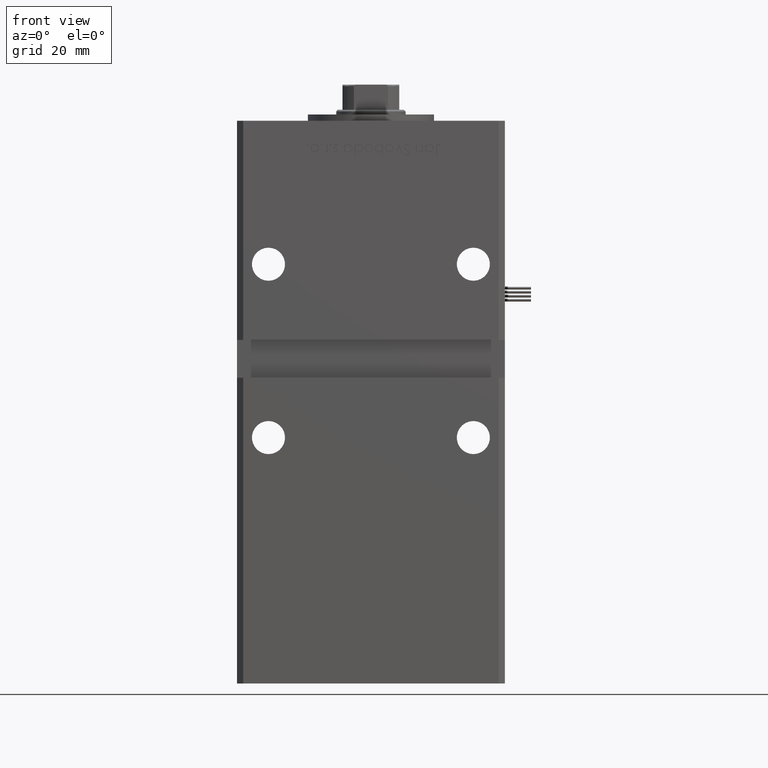
[diagram: clean part render]
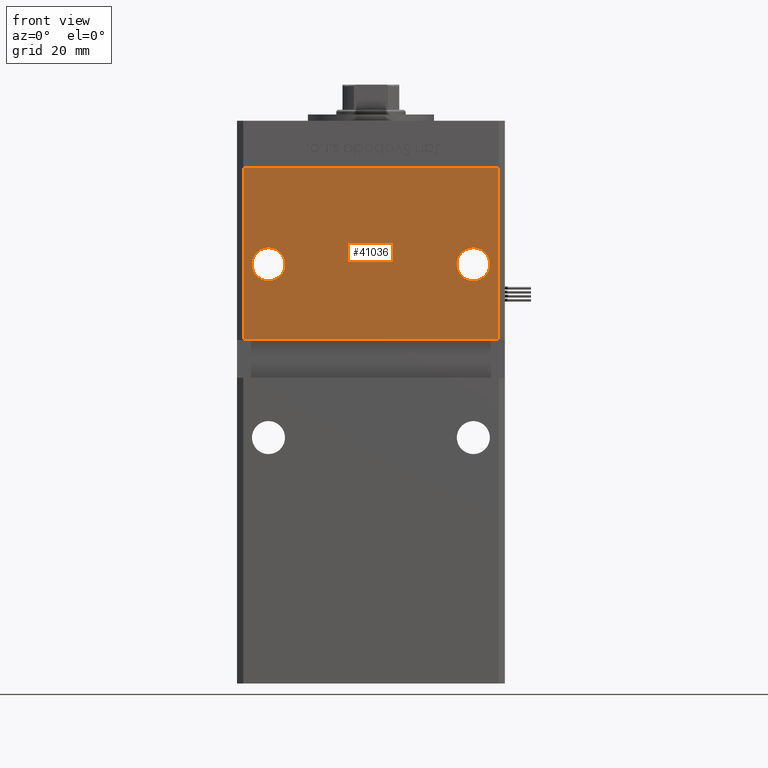
[diagram: same view with one face highlighted and labeled with its STEP entity id]
A machine part, front view. The second image highlights one B-rep face of the part: STEP entity #41036.
In plain terms, the highlighted planar face has unit normal (0, 1, 0).
Its self-contained STEP definition (entity closure, byte-faithful):
#2134 = CARTESIAN_POINT ( 'NONE',  ( -40.49999999999998579, -37.50000000000000711, 94.00000000000000000 ) ) ;
#2367 = DIRECTION ( 'NONE',  ( 0.000000000000000000, 1.000000000000000000, 0.000000000000000000 ) ) ;
#2381 = AXIS2_PLACEMENT_3D ( 'NONE', #37273, #23958, #15458 ) ;
#3640 = EDGE_CURVE ( 'NONE', #21889, #29793, #51138, .T. ) ;
#5146 = LINE ( 'NONE', #30668, #56143 ) ;
#7129 = ORIENTED_EDGE ( 'NONE', *, *, #28558, .T. ) ;
#7492 = CIRCLE ( 'NONE', #34646, 5.250000000000004441 ) ;
#7751 = PLANE ( 'NONE',  #2381 ) ;
#9617 = CARTESIAN_POINT ( 'NONE',  ( -32.50000000000000000, -37.50000000000000711, 112.7499999999999858 ) ) ;
#9652 = DIRECTION ( 'NONE',  ( -0.000000000000000000, -0.000000000000000000, -1.000000000000000000 ) ) ;
#10972 = CARTESIAN_POINT ( 'NONE',  ( -32.50000000000000000, -37.50000000000000711, 123.2500000000000000 ) ) ;
#11550 = DIRECTION ( 'NONE',  ( 0.000000000000000000, 1.000000000000000000, 0.000000000000000000 ) ) ;
#12023 = FACE_BOUND ( 'NONE', #38915, .T. ) ;
#13961 = DIRECTION ( 'NONE',  ( 0.000000000000000000, 1.000000000000000000, 0.000000000000000000 ) ) ;
#15163 = CARTESIAN_POINT ( 'NONE',  ( 32.50000000000000000, -37.50000000000000711, 118.0000000000000000 ) ) ;
#15458 = DIRECTION ( 'NONE',  ( 0.000000000000000000, -0.000000000000000000, 1.000000000000000000 ) ) ;
#15549 = AXIS2_PLACEMENT_3D ( 'NONE', #39467, #13961, #26434 ) ;
#17112 = VERTEX_POINT ( 'NONE', #20369 ) ;
#17240 = ORIENTED_EDGE ( 'NONE', *, *, #24877, .T. ) ;
#20225 = EDGE_CURVE ( 'NONE', #17112, #42887, #32454, .T. ) ;
#20352 = EDGE_CURVE ( 'NONE', #21889, #42887, #5146, .T. ) ;
#20369 = CARTESIAN_POINT ( 'NONE',  ( 40.49999999999997868, -37.50000000000000711, 94.00000000000000000 ) ) ;
#21011 = ORIENTED_EDGE ( 'NONE', *, *, #20225, .F. ) ;
#21482 = CARTESIAN_POINT ( 'NONE',  ( 40.49999999999998579, -37.50000000000000711, 148.5000000000000000 ) ) ;
#21889 = VERTEX_POINT ( 'NONE', #22815 ) ;
#22815 = CARTESIAN_POINT ( 'NONE',  ( -40.49999999999998579, -37.50000000000000711, 148.5000000000000000 ) ) ;
#22920 = DIRECTION ( 'NONE',  ( 0.000000000000000000, 1.000000000000000000, 0.000000000000000000 ) ) ;
#23958 = DIRECTION ( 'NONE',  ( 0.000000000000000000, 1.000000000000000000, 0.000000000000000000 ) ) ;
#24877 = EDGE_CURVE ( 'NONE', #36422, #27571, #49046, .T. ) ;
#25762 = VERTEX_POINT ( 'NONE', #26444 ) ;
#26434 = DIRECTION ( 'NONE',  ( 0.000000000000000000, 0.000000000000000000, 1.000000000000000000 ) ) ;
#26444 = CARTESIAN_POINT ( 'NONE',  ( 32.50000000000000000, -37.50000000000000711, 123.2500000000000000 ) ) ;
#27160 = ORIENTED_EDGE ( 'NONE', *, *, #49079, .T. ) ;
#27233 = ORIENTED_EDGE ( 'NONE', *, *, #3640, .F. ) ;
#27571 = VERTEX_POINT ( 'NONE', #10972 ) ;
#28067 = EDGE_CURVE ( 'NONE', #29793, #17112, #48507, .T. ) ;
#28262 = VERTEX_POINT ( 'NONE', #46770 ) ;
#28558 = EDGE_CURVE ( 'NONE', #27571, #36422, #7492, .T. ) ;
#29024 = DIRECTION ( 'NONE',  ( 0.000000000000000000, 0.000000000000000000, 1.000000000000000000 ) ) ;
#29105 = ORIENTED_EDGE ( 'NONE', *, *, #20352, .T. ) ;
#29236 = VECTOR ( 'NONE', #9652, 1000.000000000000000 ) ;
#29793 = VERTEX_POINT ( 'NONE', #21482 ) ;
#30668 = CARTESIAN_POINT ( 'NONE',  ( -40.49999999999998579, -37.50000000000000711, 148.5000000000000000 ) ) ;
#31420 = CARTESIAN_POINT ( 'NONE',  ( 32.50000000000000000, -37.50000000000000711, 118.0000000000000000 ) ) ;
#32454 = LINE ( 'NONE', #48933, #37986 ) ;
#34646 = AXIS2_PLACEMENT_3D ( 'NONE', #41608, #11550, #41043 ) ;
#36236 = DIRECTION ( 'NONE',  ( 0.000000000000000000, 0.000000000000000000, 1.000000000000000000 ) ) ;
#36422 = VERTEX_POINT ( 'NONE', #9617 ) ;
#37273 = CARTESIAN_POINT ( 'NONE',  ( -40.49999999999998579, -37.50000000000000711, 148.5000000000000000 ) ) ;
#37986 = VECTOR ( 'NONE', #49781, 1000.000000000000000 ) ;
#38915 = EDGE_LOOP ( 'NONE', ( #27160, #50739 ) ) ;
#39130 = EDGE_LOOP ( 'NONE', ( #7129, #17240 ) ) ;
#39467 = CARTESIAN_POINT ( 'NONE',  ( -32.50000000000000000, -37.50000000000000711, 118.0000000000000000 ) ) ;
#39994 = CARTESIAN_POINT ( 'NONE',  ( 40.49999999999998579, -37.50000000000000711, 148.5000000000000000 ) ) ;
#40562 = AXIS2_PLACEMENT_3D ( 'NONE', #15163, #2367, #29024 ) ;
#41036 = ADVANCED_FACE ( 'NONE', ( #12023, #54322, #46622 ), #7751, .F. ) ;
#41043 = DIRECTION ( 'NONE',  ( 0.000000000000000000, 0.000000000000000000, 1.000000000000000000 ) ) ;
#41608 = CARTESIAN_POINT ( 'NONE',  ( -32.50000000000000000, -37.50000000000000711, 118.0000000000000000 ) ) ;
#42511 = AXIS2_PLACEMENT_3D ( 'NONE', #31420, #22920, #36236 ) ;
#42887 = VERTEX_POINT ( 'NONE', #2134 ) ;
#43393 = CIRCLE ( 'NONE', #42511, 5.250000000000004441 ) ;
#43733 = ORIENTED_EDGE ( 'NONE', *, *, #28067, .F. ) ;
#44559 = DIRECTION ( 'NONE',  ( -0.000000000000000000, -0.000000000000000000, -1.000000000000000000 ) ) ;
#45101 = EDGE_CURVE ( 'NONE', #28262, #25762, #46925, .T. ) ;
#46622 = FACE_OUTER_BOUND ( 'NONE', #53355, .T. ) ;
#46770 = CARTESIAN_POINT ( 'NONE',  ( 32.50000000000000000, -37.50000000000000711, 112.7499999999999858 ) ) ;
#46875 = CARTESIAN_POINT ( 'NONE',  ( -40.49999999999998579, -37.50000000000000711, 148.5000000000000000 ) ) ;
#46925 = CIRCLE ( 'NONE', #40562, 5.250000000000004441 ) ;
#48507 = LINE ( 'NONE', #39994, #29236 ) ;
#48933 = CARTESIAN_POINT ( 'NONE',  ( -42.49999999999998579, -37.50000000000000711, 94.00000000000000000 ) ) ;
#49046 = CIRCLE ( 'NONE', #15549, 5.250000000000004441 ) ;
#49079 = EDGE_CURVE ( 'NONE', #25762, #28262, #43393, .T. ) ;
#49781 = DIRECTION ( 'NONE',  ( -1.000000000000000000, -0.000000000000000000, -0.000000000000000000 ) ) ;
#50739 = ORIENTED_EDGE ( 'NONE', *, *, #45101, .T. ) ;
#51115 = VECTOR ( 'NONE', #51412, 1000.000000000000000 ) ;
#51138 = LINE ( 'NONE', #46875, #51115 ) ;
#51412 = DIRECTION ( 'NONE',  ( 1.000000000000000000, 0.000000000000000000, 0.000000000000000000 ) ) ;
#53355 = EDGE_LOOP ( 'NONE', ( #29105, #21011, #43733, #27233 ) ) ;
#54322 = FACE_BOUND ( 'NONE', #39130, .T. ) ;
#56143 = VECTOR ( 'NONE', #44559, 1000.000000000000000 ) ;